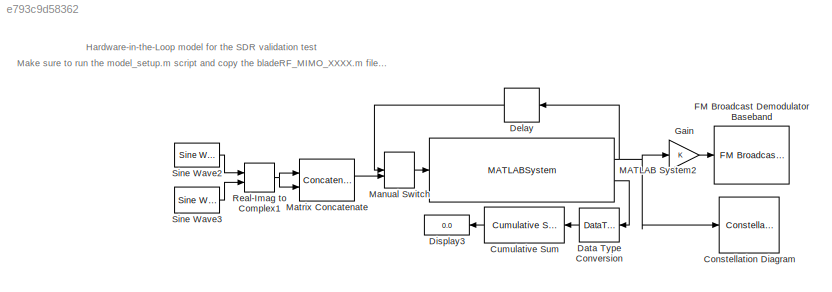
MODEL slx_e793c9d58362
KIND model
CONFIG AbsTol = auto
CONFIG EnableMultiTasking = off
CONFIG FixedStep = system.step
CONFIG MaxStep = auto
CONFIG MinStep = auto
CONFIG RelTol = 1e-3
CONFIG SampleTimeConstraint = Unconstrained
CONFIG SolverName = FixedStepAuto
CONFIG StartTime = 0.0
CONFIG StopTime = inf
BLOCK [ConstellationDiagram] Constellation Diagram
  Ports = [1]
  ScopeSpecificationString = comm.scopes.ConstellationDiagramBlockCfg('CurrentConfiguration', extmgr.ConfigurationSet(extmgr.Configuration('Tools','Measurements',true),extmgr.Configuration('Core','General UI',true,'ShowNewAction',false,'ShowLoadConfigSet',false,'ShowSaveConfigSet',false,'FigureColor',[0.156862745098039 0.156862745098039 0.156862745098039]),extmgr.Configuration('Tools','Plot Navigation',true,'XDataDisplay',80,...<+365ch>
BLOCK [Reference] Cumulative Sum  REF=dspmathops/Cumulative
Sum
  Ports = [1, 1]
  SourceBlock = dspmathops/Cumulative\nSum
  SourceProductBaseCode = DS
  SourceType = Cumulative Sum
  UserDataPersistent = on
BLOCK [DataTypeConversion] Data Type Conversion
  RndMeth = Floor
  SaturateOnIntegerOverflow = off
BLOCK [Delay] Delay
  DelayLength = 1
  InputPortMap = u0
  Ports = [1, 1]
BLOCK [Display] Display3
  Decimation = 1
  Ports = [1]
BLOCK [Reference] FM Broadcast Demodulator Baseband  REF=commanabbnd3/FM Broadcast
Demodulator
Baseband
  Ports = [1]
  SourceBlock = commanabbnd3/FM Broadcast\nDemodulator\nBaseband
  SourceProductBaseCode = CM
  SourceType = FM Broadcast Demodulator Baseband
BLOCK [Gain] Gain
BLOCK [MATLABSystem] MATLAB System2
  MaskDisplay = disp(['Nuand' char(10) 'bladeRF 2.0' char(10) 'MIMO']);\nport_label('input',1,'TX Samples');\nport_label('output',1,'RX Samples');\nport_label('output',2,'RX Overrun');
  MaskType = bladeRF_MIMO_Simulink
  Ports = [1, 2]
  SimulateUsing = Interpreted execution
  System = bladeRF_MIMO_Simulink
  enable_overrun = on
  enable_rx = on
  enable_rx_biastee = off
  enable_tx = on
  enable_tx_biastee = off
  enable_underrun = off
  loopback_mode = None
  rx_agc = SLOW
  rx_bandwidth = 1.5
  rx_buf_size = SDR.stream.buffer_size
  rx_frequency = system.freq
  rx_gain = SDR.rx_gain
  rx_num_buffers = SDR.stream.n_buffers
  rx_num_transfers = SDR.stream.n_transfers
  rx_samplerate = SDR.samplerate
  rx_step_size = system.samples_per_step
  rx_timeout_ms = SDR.stream.timeout
  tx_bandwidth = 1.5
  tx_buf_size = SDR.stream.buffer_size
  tx_frequency = system.freq
  tx_gain = SDR.tx_gain
  tx_num_buffers = SDR.stream.n_buffers
  tx_num_transfers = SDR.stream.n_transfers
  tx_samplerate = SDR.samplerate
  tx_step_size = system.samples_per_step
  tx_timeout_ms = SDR.stream.timeout
  verbosity = Verbose
  xb200 = off
BLOCK [ManualSwitch] Manual Switch
BLOCK [Concatenate] Matrix Concatenate
  ConcatenateDimension = 2
  Mode = Multidimensional array
  Ports = [2, 1]
BLOCK [RealImagToComplex] Real-Imag to Complex1
  Ports = [2, 1]
BLOCK [Reference] Sine Wave2  REF=dspsrcs4/Sine Wave
  Ports = [0, 1]
  SourceBlock = dspsrcs4/Sine Wave
  SourceProductBaseCode = DS
  SourceType = Sine Wave
BLOCK [Reference] Sine Wave3  REF=dspsrcs4/Sine Wave
  Ports = [0, 1]
  SourceBlock = dspsrcs4/Sine Wave
  SourceProductBaseCode = DS
  SourceType = Sine Wave
ANNOTATION (root): Make sure to run the model_setup.m script and copy the bladeRF_MIMO_XXXX.m files to the working directory or add them to the path.
ANNOTATION (root): Hardware-in-the-Loop model for the SDR validation test
LINE Cumulative Sum:1 -> Display3:1
LINE Data Type Conversion:1 -> Cumulative Sum:1
LINE Delay:1 -> Manual Switch:1
LINE Gain:1 -> FM Broadcast Demodulator Baseband:1
NET MATLAB System2:1 -> Constellation Diagram:1, Delay:1, Gain:1
LINE MATLAB System2:2 -> Data Type Conversion:1
LINE Manual Switch:1 -> MATLAB System2:1
LINE Matrix Concatenate:1 -> Manual Switch:2
NET Real-Imag to Complex1:1 -> Matrix Concatenate:1, Matrix Concatenate:2
LINE Sine Wave2:1 -> Real-Imag to Complex1:1
LINE Sine Wave3:1 -> Real-Imag to Complex1:2
note: NET lines group one-source signal fan-out (src -> all destinations, sorted); 1:1 wires keep LINE
